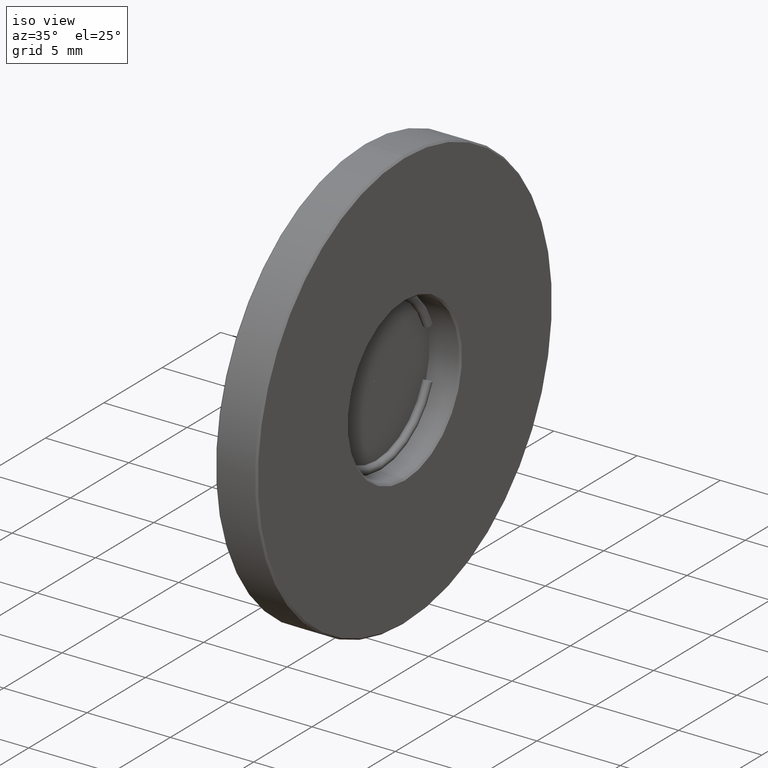
[diagram: clean part render]
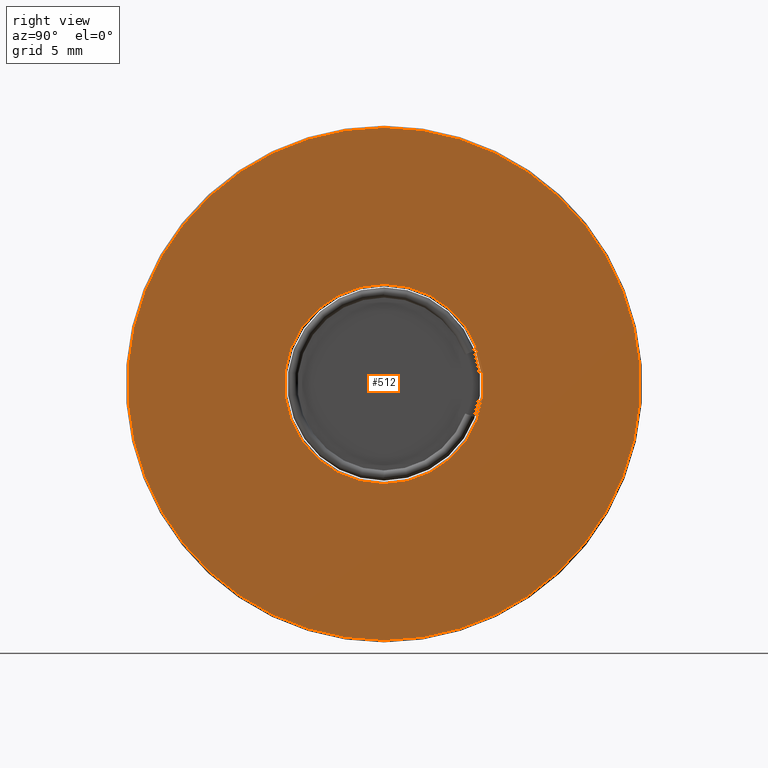
[diagram: tour spotlight — one face highlighted and labeled with its STEP entity id]
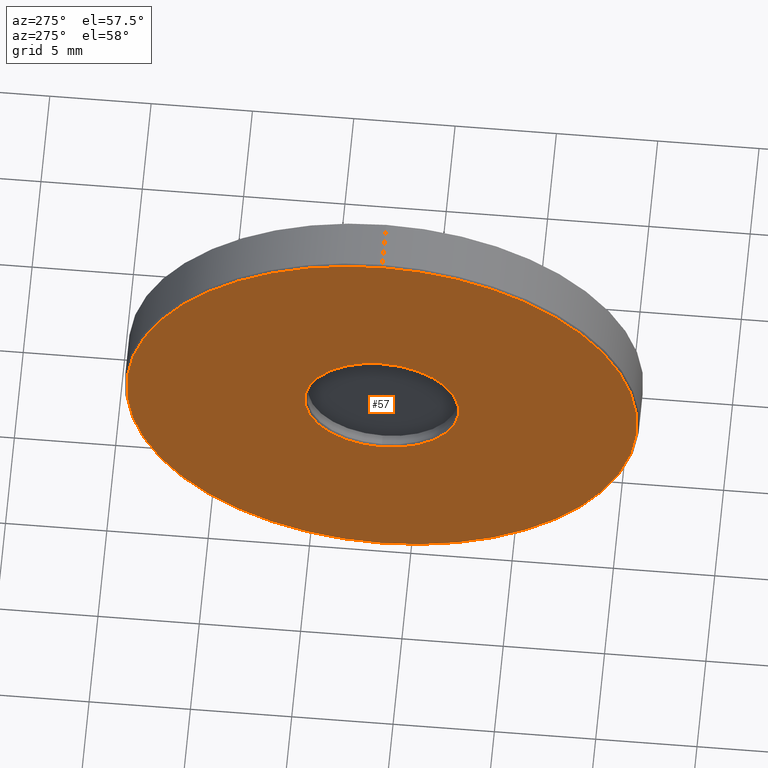
[diagram: tour spotlight — one face highlighted and labeled with its STEP entity id]
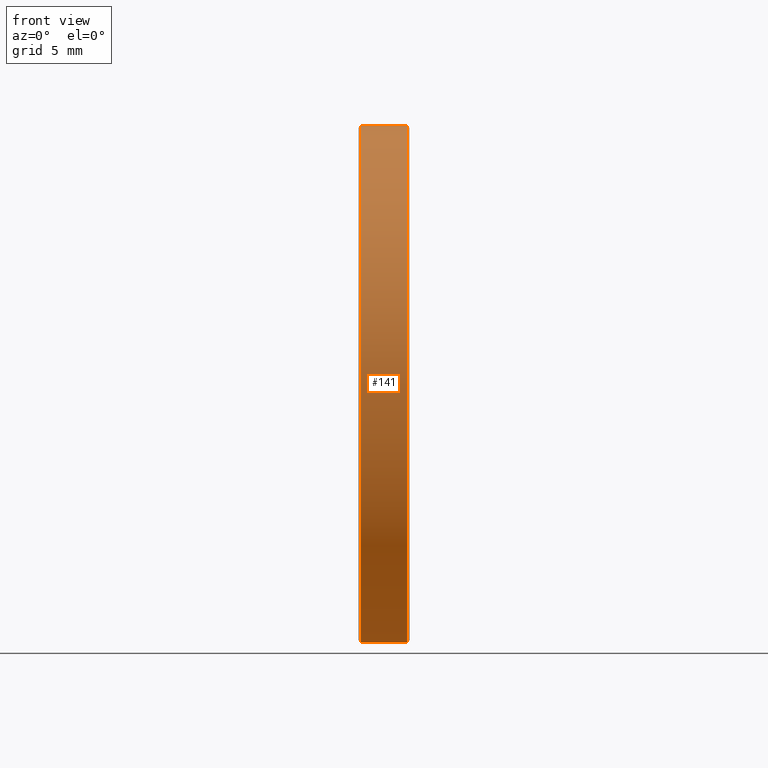
[diagram: tour spotlight — one face highlighted and labeled with its STEP entity id]
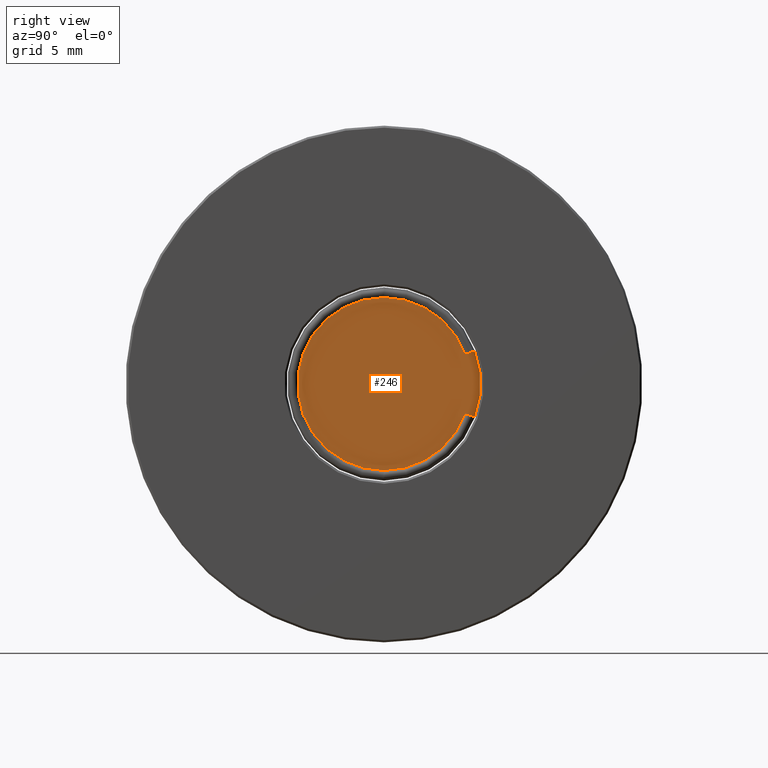
[diagram: tour spotlight — one face highlighted and labeled with its STEP entity id]
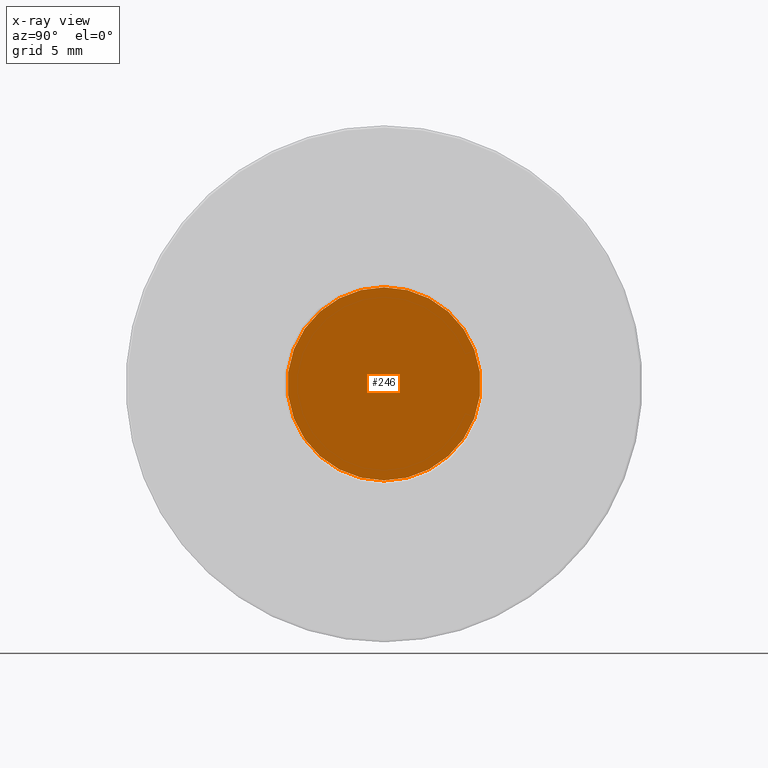
[diagram: x-ray of the same camera — body ghosted, this tour face saturated]
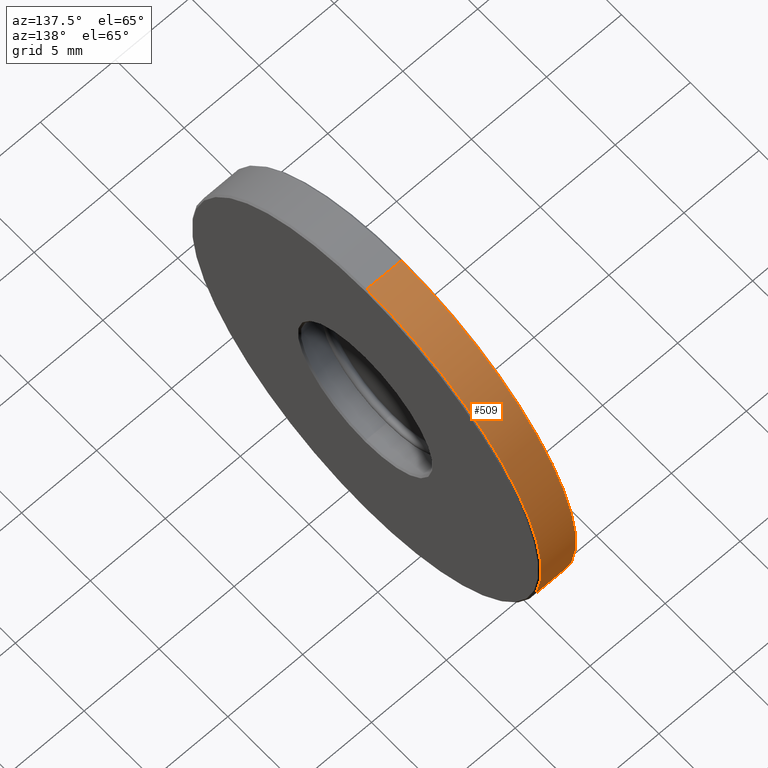
[diagram: tour spotlight — one face highlighted and labeled with its STEP entity id]
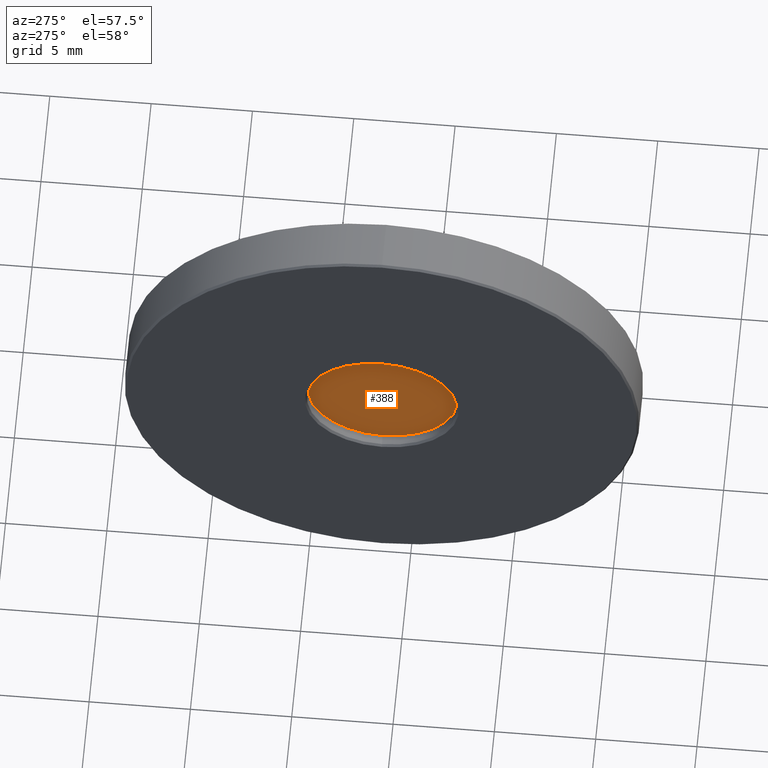
[diagram: tour spotlight — one face highlighted and labeled with its STEP entity id]
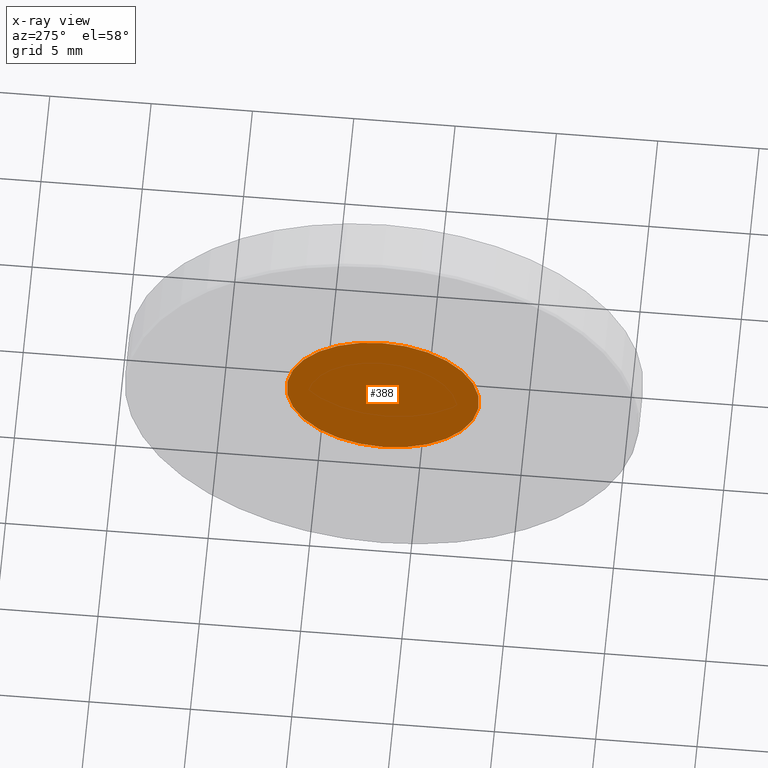
[diagram: x-ray of the same camera — body ghosted, this tour face saturated]
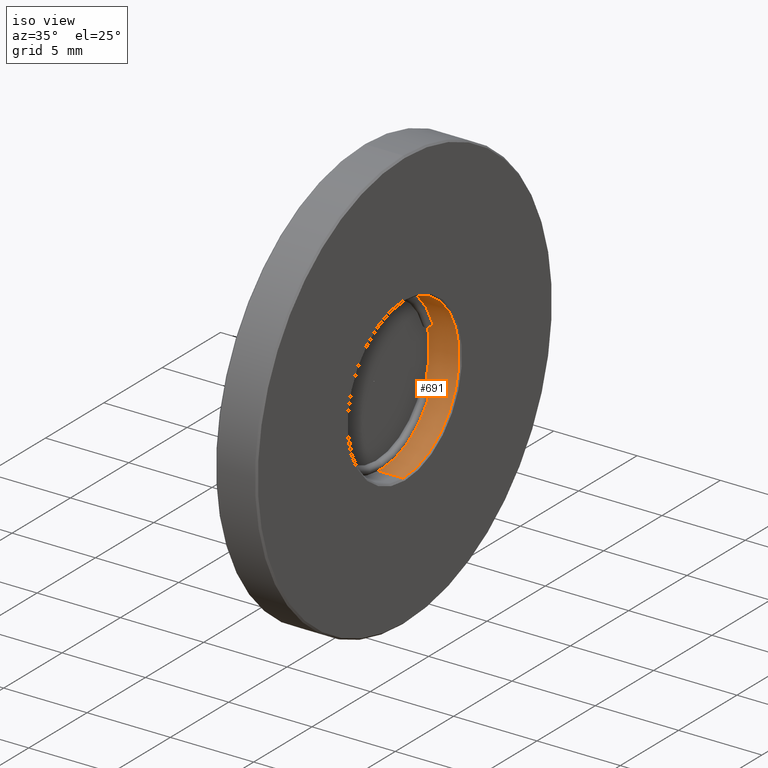
[diagram: tour spotlight — one face highlighted and labeled with its STEP entity id]
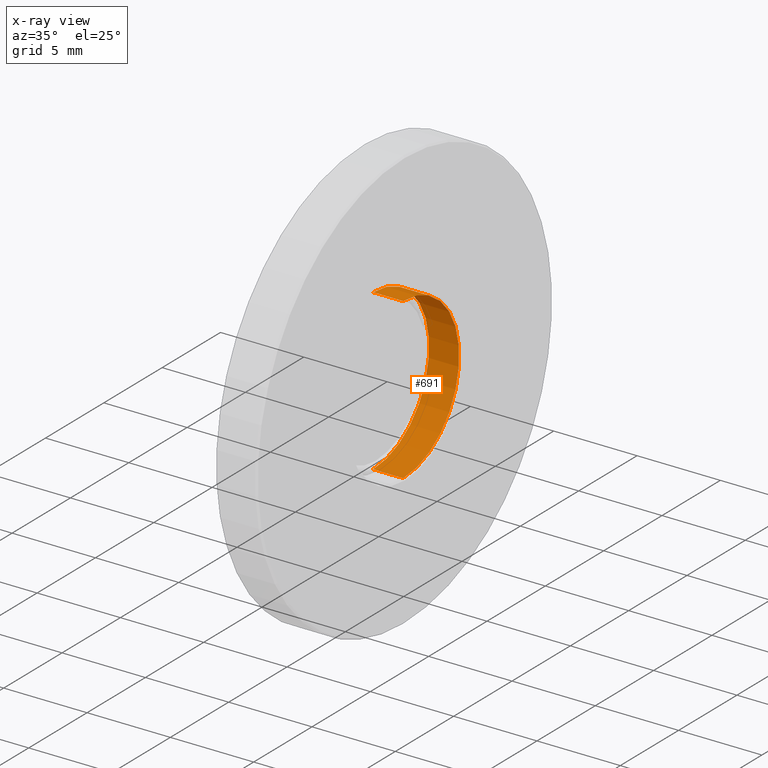
[diagram: x-ray of the same camera — body ghosted, this tour face saturated]
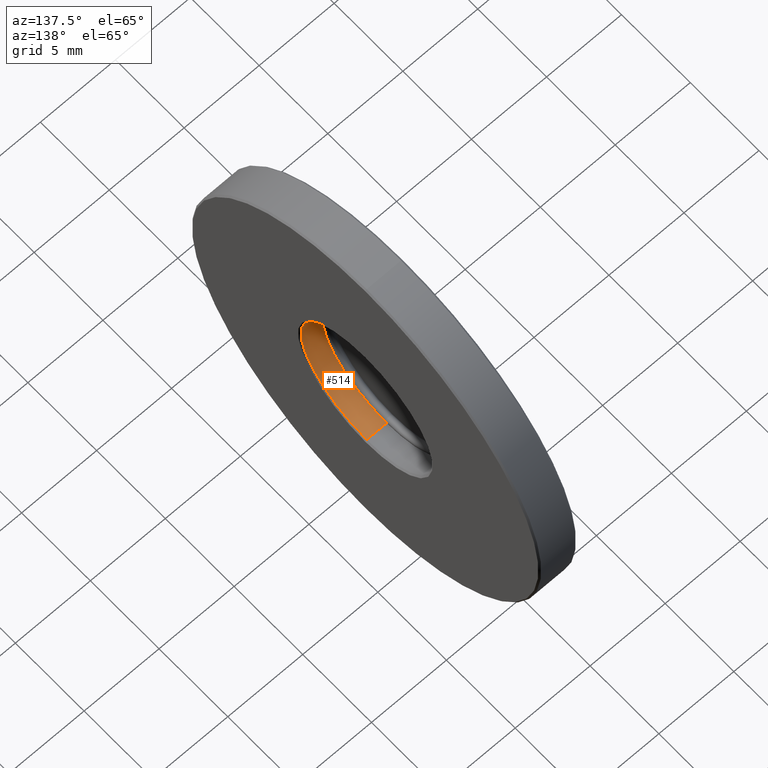
[diagram: tour spotlight — one face highlighted and labeled with its STEP entity id]
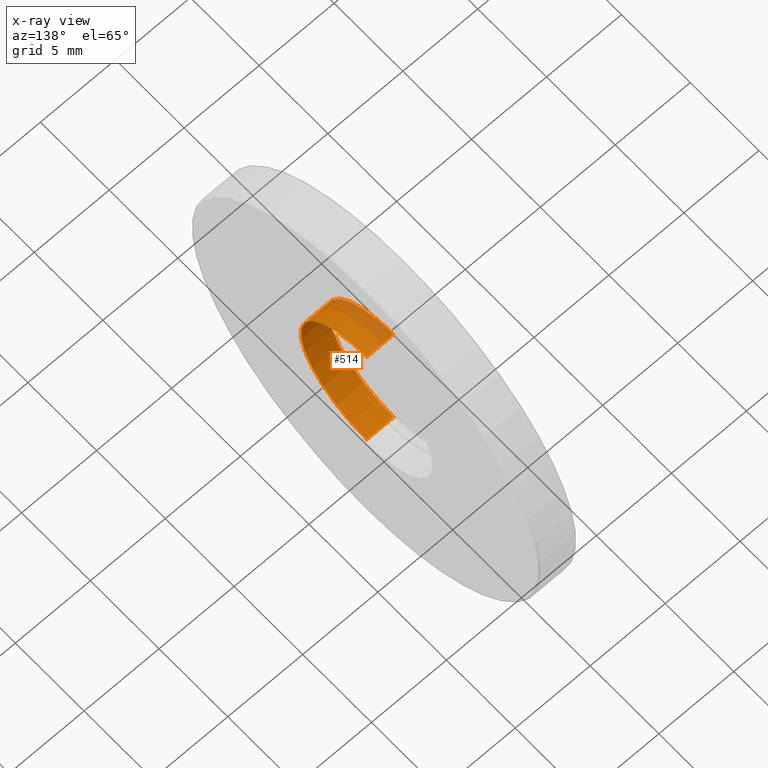
[diagram: x-ray of the same camera — body ghosted, this tour face saturated]
A machine part: a face-by-face anatomy tour. The part has 26 B-rep faces; the first image is the clean iso view, then the 8 largest visible faces are spotlighted one at a time (largest first), each with its STEP entity span.

Face 1 — right view, entity #512. In plain terms, the highlighted planar face has unit normal (1, 0, 0).
Definition (entity closure, byte-faithful):
#51 = DIRECTION ( 'NONE',  ( 1.000000000000000000, 0.0000000000000000000, 0.0000000000000000000 ) ) ;
#60 = DIRECTION ( 'NONE',  ( -1.000000000000000000, -0.0000000000000000000, -0.0000000000000000000 ) ) ;
#85 = CIRCLE ( 'NONE', #587, 4.899999999999997691 ) ;
#90 = CARTESIAN_POINT ( 'NONE',  ( -2.434863851253203482, 1.436758841085141736, 30.29999999999999716 ) ) ;
#121 = CARTESIAN_POINT ( 'NONE',  ( -2.434863851253203482, 1.436758841085142402, 12.79999999999999716 ) ) ;
#139 = VERTEX_POINT ( 'NONE', #90 ) ;
#268 = FACE_OUTER_BOUND ( 'NONE', #740, .T. ) ;
#269 = EDGE_CURVE ( 'NONE', #508, #715, #409, .T. ) ;
#290 = AXIS2_PLACEMENT_3D ( 'NONE', #796, #436, #497 ) ;
#297 = DIRECTION ( 'NONE',  ( 0.0000000000000000000, 0.0000000000000000000, -1.000000000000000000 ) ) ;
#308 = EDGE_CURVE ( 'NONE', #139, #402, #85, .T. ) ;
#329 = CARTESIAN_POINT ( 'NONE',  ( -2.434863851253203482, 1.436758841085141070, 20.50000000000000000 ) ) ;
#345 = ORIENTED_EDGE ( 'NONE', *, *, #423, .T. ) ;
#349 = EDGE_CURVE ( 'NONE', #402, #139, #758, .T. ) ;
#369 = AXIS2_PLACEMENT_3D ( 'NONE', #550, #738, #373 ) ;
#373 = DIRECTION ( 'NONE',  ( 0.0000000000000000000, 0.0000000000000000000, -1.000000000000000000 ) ) ;
#402 = VERTEX_POINT ( 'NONE', #329 ) ;
#408 = AXIS2_PLACEMENT_3D ( 'NONE', #733, #51, #602 ) ;
#409 = CIRCLE ( 'NONE', #547, 12.60000000000000142 ) ;
#423 = EDGE_CURVE ( 'NONE', #715, #508, #588, .T. ) ;
#425 = ORIENTED_EDGE ( 'NONE', *, *, #269, .T. ) ;
#436 = DIRECTION ( 'NONE',  ( -1.000000000000000000, -0.0000000000000000000, -0.0000000000000000000 ) ) ;
#445 = DIRECTION ( 'NONE',  ( 1.000000000000000000, 0.0000000000000000000, 0.0000000000000000000 ) ) ;
#455 = CARTESIAN_POINT ( 'NONE',  ( -2.434863851253203482, 1.436758841085141070, 38.00000000000000711 ) ) ;
#459 = ORIENTED_EDGE ( 'NONE', *, *, #308, .T. ) ;
#497 = DIRECTION ( 'NONE',  ( 0.0000000000000000000, 0.0000000000000000000, -1.000000000000000000 ) ) ;
#503 = CARTESIAN_POINT ( 'NONE',  ( -2.434863851253203482, 1.436758841085141070, 25.39999999999999858 ) ) ;
#508 = VERTEX_POINT ( 'NONE', #121 ) ;
#512 = ADVANCED_FACE ( 'NONE', ( #642, #268 ), #795, .T. ) ;
#547 = AXIS2_PLACEMENT_3D ( 'NONE', #802, #445, #716 ) ;
#550 = CARTESIAN_POINT ( 'NONE',  ( -2.434863851253203482, 1.436758841085141070, 25.39999999999999858 ) ) ;
#587 = AXIS2_PLACEMENT_3D ( 'NONE', #503, #60, #297 ) ;
#588 = CIRCLE ( 'NONE', #408, 12.60000000000000142 ) ;
#602 = DIRECTION ( 'NONE',  ( 0.0000000000000000000, 0.0000000000000000000, -1.000000000000000000 ) ) ;
#642 = FACE_BOUND ( 'NONE', #712, .T. ) ;
#712 = EDGE_LOOP ( 'NONE', ( #727, #459 ) ) ;
#715 = VERTEX_POINT ( 'NONE', #455 ) ;
#716 = DIRECTION ( 'NONE',  ( 0.0000000000000000000, 0.0000000000000000000, -1.000000000000000000 ) ) ;
#727 = ORIENTED_EDGE ( 'NONE', *, *, #349, .T. ) ;
#733 = CARTESIAN_POINT ( 'NONE',  ( -2.434863851253203482, 1.436758841085141070, 25.39999999999999858 ) ) ;
#738 = DIRECTION ( 'NONE',  ( 1.000000000000000000, 0.0000000000000000000, 0.0000000000000000000 ) ) ;
#740 = EDGE_LOOP ( 'NONE', ( #345, #425 ) ) ;
#758 = CIRCLE ( 'NONE', #290, 4.899999999999997691 ) ;
#795 = PLANE ( 'NONE',  #369 ) ;
#796 = CARTESIAN_POINT ( 'NONE',  ( -2.434863851253203482, 1.436758841085141070, 25.39999999999999858 ) ) ;
#802 = CARTESIAN_POINT ( 'NONE',  ( -2.434863851253203482, 1.436758841085141070, 25.39999999999999858 ) ) ;

Face 2 — auxiliary view, entity #57. In plain terms, the highlighted planar face has unit normal (1, 0, 0).
Definition (entity closure, byte-faithful):
#13 = AXIS2_PLACEMENT_3D ( 'NONE', #166, #42, #407 ) ;
#15 = VERTEX_POINT ( 'NONE', #732 ) ;
#42 = DIRECTION ( 'NONE',  ( 1.000000000000000000, 0.0000000000000000000, 0.0000000000000000000 ) ) ;
#57 = ADVANCED_FACE ( 'NONE', ( #521, #438 ), #125, .F. ) ;
#68 = DIRECTION ( 'NONE',  ( 0.0000000000000000000, 0.0000000000000000000, -1.000000000000000000 ) ) ;
#125 = PLANE ( 'NONE',  #597 ) ;
#127 = CARTESIAN_POINT ( 'NONE',  ( -4.934863851253203926, 1.436758841085141070, 25.39999999999999858 ) ) ;
#131 = CARTESIAN_POINT ( 'NONE',  ( -4.934863851253203926, 1.436758841085141070, 25.39999999999999858 ) ) ;
#166 = CARTESIAN_POINT ( 'NONE',  ( -4.934863851253203926, 1.436758841085141070, 25.39999999999999858 ) ) ;
#169 = AXIS2_PLACEMENT_3D ( 'NONE', #131, #620, #68 ) ;
#170 = ORIENTED_EDGE ( 'NONE', *, *, #714, .T. ) ;
#174 = VERTEX_POINT ( 'NONE', #397 ) ;
#179 = DIRECTION ( 'NONE',  ( 0.0000000000000000000, 0.0000000000000000000, -1.000000000000000000 ) ) ;
#184 = EDGE_CURVE ( 'NONE', #15, #174, #460, .T. ) ;
#261 = DIRECTION ( 'NONE',  ( 1.000000000000000000, 0.0000000000000000000, 0.0000000000000000000 ) ) ;
#267 = CARTESIAN_POINT ( 'NONE',  ( -4.934863851253203926, 1.436758841085141070, 25.39999999999999858 ) ) ;
#298 = EDGE_CURVE ( 'NONE', #174, #15, #604, .T. ) ;
#310 = CIRCLE ( 'NONE', #331, 12.59999999999999787 ) ;
#312 = CARTESIAN_POINT ( 'NONE',  ( -4.934863851253203926, 1.436758841085141070, 25.39999999999999858 ) ) ;
#331 = AXIS2_PLACEMENT_3D ( 'NONE', #127, #371, #179 ) ;
#334 = EDGE_LOOP ( 'NONE', ( #170, #601 ) ) ;
#342 = EDGE_LOOP ( 'NONE', ( #589, #665 ) ) ;
#371 = DIRECTION ( 'NONE',  ( -1.000000000000000000, -0.0000000000000000000, -0.0000000000000000000 ) ) ;
#391 = VERTEX_POINT ( 'NONE', #564 ) ;
#397 = CARTESIAN_POINT ( 'NONE',  ( -4.934863851253203926, 1.436758841085141070, 29.19999999999999929 ) ) ;
#399 = DIRECTION ( 'NONE',  ( 0.0000000000000000000, 0.0000000000000000000, -1.000000000000000000 ) ) ;
#406 = VERTEX_POINT ( 'NONE', #424 ) ;
#407 = DIRECTION ( 'NONE',  ( 0.0000000000000000000, 0.0000000000000000000, -1.000000000000000000 ) ) ;
#424 = CARTESIAN_POINT ( 'NONE',  ( -4.934863851253203926, 1.436758841085141070, 12.80000000000000071 ) ) ;
#438 = FACE_OUTER_BOUND ( 'NONE', #334, .T. ) ;
#454 = DIRECTION ( 'NONE',  ( 0.0000000000000000000, 0.0000000000000000000, -1.000000000000000000 ) ) ;
#460 = CIRCLE ( 'NONE', #13, 3.800000000000001155 ) ;
#463 = EDGE_CURVE ( 'NONE', #391, #406, #310, .T. ) ;
#495 = AXIS2_PLACEMENT_3D ( 'NONE', #267, #767, #399 ) ;
#521 = FACE_BOUND ( 'NONE', #342, .T. ) ;
#543 = CIRCLE ( 'NONE', #495, 12.59999999999999787 ) ;
#564 = CARTESIAN_POINT ( 'NONE',  ( -4.934863851253203926, 1.436758841085142402, 38.00000000000000000 ) ) ;
#589 = ORIENTED_EDGE ( 'NONE', *, *, #298, .T. ) ;
#597 = AXIS2_PLACEMENT_3D ( 'NONE', #312, #261, #454 ) ;
#601 = ORIENTED_EDGE ( 'NONE', *, *, #463, .T. ) ;
#604 = CIRCLE ( 'NONE', #169, 3.800000000000001155 ) ;
#620 = DIRECTION ( 'NONE',  ( 1.000000000000000000, 0.0000000000000000000, 0.0000000000000000000 ) ) ;
#665 = ORIENTED_EDGE ( 'NONE', *, *, #184, .T. ) ;
#714 = EDGE_CURVE ( 'NONE', #406, #391, #543, .T. ) ;
#732 = CARTESIAN_POINT ( 'NONE',  ( -4.934863851253203926, 1.436758841085141514, 21.59999999999999787 ) ) ;
#767 = DIRECTION ( 'NONE',  ( -1.000000000000000000, -0.0000000000000000000, -0.0000000000000000000 ) ) ;

Face 3 — front view, entity #141. In plain terms, the highlighted cylindrical surface (partial cylindrical patch) has radius 12.7 mm, axis along (-1, -0, -0).
Definition (entity closure, byte-faithful):
#12 = CARTESIAN_POINT ( 'NONE',  ( -4.834863851253204281, 1.436758841085141070, 25.39999999999999858 ) ) ;
#46 = AXIS2_PLACEMENT_3D ( 'NONE', #12, #447, #135 ) ;
#49 = EDGE_CURVE ( 'NONE', #511, #105, #194, .T. ) ;
#55 = VERTEX_POINT ( 'NONE', #667 ) ;
#88 = ORIENTED_EDGE ( 'NONE', *, *, #152, .T. ) ;
#105 = VERTEX_POINT ( 'NONE', #679 ) ;
#120 = VECTOR ( 'NONE', #655, 1000.000000000000000 ) ;
#135 = DIRECTION ( 'NONE',  ( 0.0000000000000000000, 0.0000000000000000000, -1.000000000000000000 ) ) ;
#141 = ADVANCED_FACE ( 'NONE', ( #396 ), #559, .T. ) ;
#152 = EDGE_CURVE ( 'NONE', #55, #511, #594, .T. ) ;
#158 = ORIENTED_EDGE ( 'NONE', *, *, #400, .T. ) ;
#161 = CARTESIAN_POINT ( 'NONE',  ( -4.834863851253204281, 1.436758841085141070, 12.69999999999999929 ) ) ;
#194 = LINE ( 'NONE', #558, #779 ) ;
#284 = LINE ( 'NONE', #507, #120 ) ;
#300 = CIRCLE ( 'NONE', #46, 12.69999999999999929 ) ;
#305 = EDGE_CURVE ( 'NONE', #55, #791, #284, .T. ) ;
#326 = ORIENTED_EDGE ( 'NONE', *, *, #49, .T. ) ;
#338 = DIRECTION ( 'NONE',  ( -1.000000000000000000, -0.0000000000000000000, -0.0000000000000000000 ) ) ;
#355 = DIRECTION ( 'NONE',  ( 0.0000000000000000000, 0.0000000000000000000, -1.000000000000000000 ) ) ;
#385 = AXIS2_PLACEMENT_3D ( 'NONE', #695, #338, #464 ) ;
#396 = FACE_OUTER_BOUND ( 'NONE', #478, .T. ) ;
#400 = EDGE_CURVE ( 'NONE', #105, #791, #300, .T. ) ;
#447 = DIRECTION ( 'NONE',  ( 1.000000000000000000, -0.0000000000000000000, -0.0000000000000000000 ) ) ;
#464 = DIRECTION ( 'NONE',  ( 0.0000000000000000000, 0.0000000000000000000, 1.000000000000000000 ) ) ;
#478 = EDGE_LOOP ( 'NONE', ( #633, #88, #326, #158 ) ) ;
#493 = DIRECTION ( 'NONE',  ( -1.000000000000000000, -0.0000000000000000000, -0.0000000000000000000 ) ) ;
#507 = CARTESIAN_POINT ( 'NONE',  ( -2.434863851253203482, 1.436758841085142402, 12.69999999999999929 ) ) ;
#511 = VERTEX_POINT ( 'NONE', #608 ) ;
#537 = AXIS2_PLACEMENT_3D ( 'NONE', #593, #774, #355 ) ;
#558 = CARTESIAN_POINT ( 'NONE',  ( -2.434863851253203482, 1.436758841085141070, 38.09999999999999432 ) ) ;
#559 = CYLINDRICAL_SURFACE ( 'NONE', #385, 12.69999999999999574 ) ;
#593 = CARTESIAN_POINT ( 'NONE',  ( -2.534863851253199574, 1.436758841085141070, 25.39999999999999858 ) ) ;
#594 = CIRCLE ( 'NONE', #537, 12.69999999999999929 ) ;
#608 = CARTESIAN_POINT ( 'NONE',  ( -2.534863851253199574, 1.436758841085141070, 38.09999999999999432 ) ) ;
#633 = ORIENTED_EDGE ( 'NONE', *, *, #305, .F. ) ;
#655 = DIRECTION ( 'NONE',  ( -1.000000000000000000, -0.0000000000000000000, -0.0000000000000000000 ) ) ;
#667 = CARTESIAN_POINT ( 'NONE',  ( -2.534863851253199574, 1.436758841085142402, 12.69999999999999929 ) ) ;
#679 = CARTESIAN_POINT ( 'NONE',  ( -4.834863851253204281, 1.436758841085142402, 38.09999999999999432 ) ) ;
#695 = CARTESIAN_POINT ( 'NONE',  ( -2.434863851253203482, 1.436758841085141070, 25.39999999999999858 ) ) ;
#774 = DIRECTION ( 'NONE',  ( -1.000000000000000000, 0.0000000000000000000, 0.0000000000000000000 ) ) ;
#779 = VECTOR ( 'NONE', #493, 1000.000000000000000 ) ;
#791 = VERTEX_POINT ( 'NONE', #161 ) ;

Face 4 — right view, entity #246. An x-ray twin of the same camera follows (body ghosted, this face saturated) — the face is partly hidden behind the body. In plain terms, the highlighted planar face has unit normal (1, 0, -0).
Definition (entity closure, byte-faithful):
#11 = FACE_BOUND ( 'NONE', #36, .T. ) ;
#36 = EDGE_LOOP ( 'NONE', ( #541, #773 ) ) ;
#43 = VERTEX_POINT ( 'NONE', #544 ) ;
#53 = CARTESIAN_POINT ( 'NONE',  ( -4.284863851253205347, 1.436758841085140181, 25.39999999999999858 ) ) ;
#84 = CIRCLE ( 'NONE', #347, 0.01500000000000112355 ) ;
#91 = CIRCLE ( 'NONE', #241, 4.750000000000000888 ) ;
#100 = DIRECTION ( 'NONE',  ( 0.0000000000000000000, 0.0000000000000000000, 1.000000000000000000 ) ) ;
#110 = DIRECTION ( 'NONE',  ( 1.000000000000000000, 0.0000000000000000000, 0.0000000000000000000 ) ) ;
#118 = DIRECTION ( 'NONE',  ( 1.000000000000000000, 0.0000000000000000000, 0.0000000000000000000 ) ) ;
#160 = PLANE ( 'NONE',  #615 ) ;
#183 = CARTESIAN_POINT ( 'NONE',  ( -4.284863851253205347, 1.436758841085140181, 25.39999999999999858 ) ) ;
#217 = VERTEX_POINT ( 'NONE', #705 ) ;
#218 = CARTESIAN_POINT ( 'NONE',  ( -4.284863851253205347, 1.436758841085140181, 25.39999999999999858 ) ) ;
#241 = AXIS2_PLACEMENT_3D ( 'NONE', #183, #110, #321 ) ;
#246 = ADVANCED_FACE ( 'NONE', ( #656, #11 ), #160, .T. ) ;
#253 = EDGE_CURVE ( 'NONE', #43, #361, #472, .T. ) ;
#263 = CARTESIAN_POINT ( 'NONE',  ( -4.284863851253205347, 1.436758841085140181, 30.14999999999999858 ) ) ;
#313 = EDGE_LOOP ( 'NONE', ( #393, #539 ) ) ;
#315 = CARTESIAN_POINT ( 'NONE',  ( -4.284863851253205347, 1.436758841085140181, 25.39999999999999858 ) ) ;
#318 = AXIS2_PLACEMENT_3D ( 'NONE', #491, #118, #494 ) ;
#321 = DIRECTION ( 'NONE',  ( 0.0000000000000000000, 0.0000000000000000000, 1.000000000000000000 ) ) ;
#336 = EDGE_CURVE ( 'NONE', #417, #217, #91, .T. ) ;
#347 = AXIS2_PLACEMENT_3D ( 'NONE', #53, #430, #542 ) ;
#361 = VERTEX_POINT ( 'NONE', #730 ) ;
#393 = ORIENTED_EDGE ( 'NONE', *, *, #336, .T. ) ;
#410 = CIRCLE ( 'NONE', #318, 4.750000000000000888 ) ;
#411 = EDGE_CURVE ( 'NONE', #361, #43, #84, .T. ) ;
#417 = VERTEX_POINT ( 'NONE', #263 ) ;
#430 = DIRECTION ( 'NONE',  ( 1.000000000000000000, 0.0000000000000000000, 0.0000000000000000000 ) ) ;
#439 = DIRECTION ( 'NONE',  ( 0.0000000000000000000, 0.0000000000000000000, 1.000000000000000000 ) ) ;
#446 = EDGE_CURVE ( 'NONE', #217, #417, #410, .T. ) ;
#472 = CIRCLE ( 'NONE', #475, 0.01500000000000112355 ) ;
#475 = AXIS2_PLACEMENT_3D ( 'NONE', #315, #561, #439 ) ;
#491 = CARTESIAN_POINT ( 'NONE',  ( -4.284863851253205347, 1.436758841085140181, 25.39999999999999858 ) ) ;
#494 = DIRECTION ( 'NONE',  ( 0.0000000000000000000, 0.0000000000000000000, 1.000000000000000000 ) ) ;
#539 = ORIENTED_EDGE ( 'NONE', *, *, #446, .T. ) ;
#541 = ORIENTED_EDGE ( 'NONE', *, *, #411, .F. ) ;
#542 = DIRECTION ( 'NONE',  ( 0.0000000000000000000, 0.0000000000000000000, 1.000000000000000000 ) ) ;
#544 = CARTESIAN_POINT ( 'NONE',  ( -4.284863851253205347, 1.436758841085140181, 25.38499999999999801 ) ) ;
#561 = DIRECTION ( 'NONE',  ( 1.000000000000000000, 0.0000000000000000000, 0.0000000000000000000 ) ) ;
#615 = AXIS2_PLACEMENT_3D ( 'NONE', #218, #643, #100 ) ;
#643 = DIRECTION ( 'NONE',  ( 1.000000000000000000, 0.0000000000000000000, -0.0000000000000000000 ) ) ;
#656 = FACE_OUTER_BOUND ( 'NONE', #313, .T. ) ;
#705 = CARTESIAN_POINT ( 'NONE',  ( -4.284863851253205347, 1.436758841085139515, 20.64999999999999858 ) ) ;
#730 = CARTESIAN_POINT ( 'NONE',  ( -4.284863851253205347, 1.436758841085140181, 25.41499999999999915 ) ) ;
#773 = ORIENTED_EDGE ( 'NONE', *, *, #253, .F. ) ;

Face 5 — auxiliary view, entity #509. In plain terms, the highlighted cylindrical surface (partial cylindrical patch) has radius 12.7 mm, axis along (-1, -0, -0).
Definition (entity closure, byte-faithful):
#49 = EDGE_CURVE ( 'NONE', #511, #105, #194, .T. ) ;
#55 = VERTEX_POINT ( 'NONE', #667 ) ;
#105 = VERTEX_POINT ( 'NONE', #679 ) ;
#120 = VECTOR ( 'NONE', #655, 1000.000000000000000 ) ;
#157 = ORIENTED_EDGE ( 'NONE', *, *, #515, .T. ) ;
#161 = CARTESIAN_POINT ( 'NONE',  ( -4.834863851253204281, 1.436758841085141070, 12.69999999999999929 ) ) ;
#163 = CIRCLE ( 'NONE', #238, 12.69999999999999929 ) ;
#176 = ORIENTED_EDGE ( 'NONE', *, *, #322, .T. ) ;
#187 = AXIS2_PLACEMENT_3D ( 'NONE', #307, #668, #800 ) ;
#191 = CARTESIAN_POINT ( 'NONE',  ( -2.534863851253199574, 1.436758841085141070, 25.39999999999999858 ) ) ;
#194 = LINE ( 'NONE', #558, #779 ) ;
#204 = ORIENTED_EDGE ( 'NONE', *, *, #305, .T. ) ;
#238 = AXIS2_PLACEMENT_3D ( 'NONE', #323, #555, #563 ) ;
#249 = DIRECTION ( 'NONE',  ( -1.000000000000000000, 0.0000000000000000000, 0.0000000000000000000 ) ) ;
#284 = LINE ( 'NONE', #507, #120 ) ;
#305 = EDGE_CURVE ( 'NONE', #55, #791, #284, .T. ) ;
#307 = CARTESIAN_POINT ( 'NONE',  ( -2.434863851253203482, 1.436758841085141070, 25.39999999999999858 ) ) ;
#311 = DIRECTION ( 'NONE',  ( 0.0000000000000000000, 0.0000000000000000000, -1.000000000000000000 ) ) ;
#322 = EDGE_CURVE ( 'NONE', #511, #55, #719, .T. ) ;
#323 = CARTESIAN_POINT ( 'NONE',  ( -4.834863851253204281, 1.436758841085141070, 25.39999999999999858 ) ) ;
#368 = ORIENTED_EDGE ( 'NONE', *, *, #49, .F. ) ;
#493 = DIRECTION ( 'NONE',  ( -1.000000000000000000, -0.0000000000000000000, -0.0000000000000000000 ) ) ;
#507 = CARTESIAN_POINT ( 'NONE',  ( -2.434863851253203482, 1.436758841085142402, 12.69999999999999929 ) ) ;
#509 = ADVANCED_FACE ( 'NONE', ( #710 ), #750, .T. ) ;
#511 = VERTEX_POINT ( 'NONE', #608 ) ;
#515 = EDGE_CURVE ( 'NONE', #791, #105, #163, .T. ) ;
#555 = DIRECTION ( 'NONE',  ( 1.000000000000000000, -0.0000000000000000000, -0.0000000000000000000 ) ) ;
#558 = CARTESIAN_POINT ( 'NONE',  ( -2.434863851253203482, 1.436758841085141070, 38.09999999999999432 ) ) ;
#563 = DIRECTION ( 'NONE',  ( 0.0000000000000000000, 0.0000000000000000000, -1.000000000000000000 ) ) ;
#608 = CARTESIAN_POINT ( 'NONE',  ( -2.534863851253199574, 1.436758841085141070, 38.09999999999999432 ) ) ;
#655 = DIRECTION ( 'NONE',  ( -1.000000000000000000, -0.0000000000000000000, -0.0000000000000000000 ) ) ;
#659 = EDGE_LOOP ( 'NONE', ( #176, #204, #157, #368 ) ) ;
#667 = CARTESIAN_POINT ( 'NONE',  ( -2.534863851253199574, 1.436758841085142402, 12.69999999999999929 ) ) ;
#668 = DIRECTION ( 'NONE',  ( -1.000000000000000000, -0.0000000000000000000, -0.0000000000000000000 ) ) ;
#679 = CARTESIAN_POINT ( 'NONE',  ( -4.834863851253204281, 1.436758841085142402, 38.09999999999999432 ) ) ;
#707 = AXIS2_PLACEMENT_3D ( 'NONE', #191, #249, #311 ) ;
#710 = FACE_OUTER_BOUND ( 'NONE', #659, .T. ) ;
#719 = CIRCLE ( 'NONE', #707, 12.69999999999999929 ) ;
#750 = CYLINDRICAL_SURFACE ( 'NONE', #187, 12.69999999999999574 ) ;
#779 = VECTOR ( 'NONE', #493, 1000.000000000000000 ) ;
#791 = VERTEX_POINT ( 'NONE', #161 ) ;
#800 = DIRECTION ( 'NONE',  ( 0.0000000000000000000, 0.0000000000000000000, 1.000000000000000000 ) ) ;

Face 6 — auxiliary view, entity #388. An x-ray twin of the same camera follows (body ghosted, this face saturated) — the face is partly hidden behind the body. In plain terms, the highlighted planar face has unit normal (1, 0, -0).
Definition (entity closure, byte-faithful):
#17 = DIRECTION ( 'NONE',  ( 0.0000000000000000000, 0.0000000000000000000, 1.000000000000000000 ) ) ;
#22 = VERTEX_POINT ( 'NONE', #793 ) ;
#47 = VERTEX_POINT ( 'NONE', #490 ) ;
#50 = AXIS2_PLACEMENT_3D ( 'NONE', #570, #449, #252 ) ;
#62 = ORIENTED_EDGE ( 'NONE', *, *, #742, .F. ) ;
#73 = DIRECTION ( 'NONE',  ( 0.0000000000000000000, 0.0000000000000000000, 1.000000000000000000 ) ) ;
#148 = EDGE_LOOP ( 'NONE', ( #339, #440 ) ) ;
#178 = CIRCLE ( 'NONE', #287, 0.01500000000000112355 ) ;
#207 = VERTEX_POINT ( 'NONE', #711 ) ;
#221 = DIRECTION ( 'NONE',  ( 1.000000000000000000, 0.0000000000000000000, 0.0000000000000000000 ) ) ;
#223 = AXIS2_PLACEMENT_3D ( 'NONE', #660, #237, #662 ) ;
#237 = DIRECTION ( 'NONE',  ( 1.000000000000000000, 0.0000000000000000000, 0.0000000000000000000 ) ) ;
#252 = DIRECTION ( 'NONE',  ( 0.0000000000000000000, 0.0000000000000000000, 1.000000000000000000 ) ) ;
#287 = AXIS2_PLACEMENT_3D ( 'NONE', #682, #749, #17 ) ;
#330 = CIRCLE ( 'NONE', #652, 4.750000000000000888 ) ;
#339 = ORIENTED_EDGE ( 'NONE', *, *, #505, .T. ) ;
#354 = EDGE_CURVE ( 'NONE', #47, #207, #330, .T. ) ;
#356 = AXIS2_PLACEMENT_3D ( 'NONE', #528, #221, #669 ) ;
#388 = ADVANCED_FACE ( 'NONE', ( #789, #394 ), #451, .F. ) ;
#394 = FACE_BOUND ( 'NONE', #148, .T. ) ;
#440 = ORIENTED_EDGE ( 'NONE', *, *, #611, .T. ) ;
#448 = CIRCLE ( 'NONE', #223, 0.01500000000000112355 ) ;
#449 = DIRECTION ( 'NONE',  ( 1.000000000000000000, 0.0000000000000000000, -0.0000000000000000000 ) ) ;
#451 = PLANE ( 'NONE',  #50 ) ;
#490 = CARTESIAN_POINT ( 'NONE',  ( -4.334863851253204281, 1.436758841085139515, 20.64999999999999858 ) ) ;
#505 = EDGE_CURVE ( 'NONE', #22, #568, #448, .T. ) ;
#528 = CARTESIAN_POINT ( 'NONE',  ( -4.334863851253204281, 1.436758841085140181, 25.39999999999999858 ) ) ;
#546 = ORIENTED_EDGE ( 'NONE', *, *, #354, .F. ) ;
#568 = VERTEX_POINT ( 'NONE', #728 ) ;
#570 = CARTESIAN_POINT ( 'NONE',  ( -4.334863851253204281, 1.436758841085140181, 25.39999999999999858 ) ) ;
#611 = EDGE_CURVE ( 'NONE', #568, #22, #178, .T. ) ;
#622 = CARTESIAN_POINT ( 'NONE',  ( -4.334863851253204281, 1.436758841085140181, 25.39999999999999858 ) ) ;
#652 = AXIS2_PLACEMENT_3D ( 'NONE', #622, #748, #73 ) ;
#660 = CARTESIAN_POINT ( 'NONE',  ( -4.334863851253204281, 1.436758841085140181, 25.39999999999999858 ) ) ;
#662 = DIRECTION ( 'NONE',  ( 0.0000000000000000000, 0.0000000000000000000, 1.000000000000000000 ) ) ;
#669 = DIRECTION ( 'NONE',  ( 0.0000000000000000000, 0.0000000000000000000, 1.000000000000000000 ) ) ;
#682 = CARTESIAN_POINT ( 'NONE',  ( -4.334863851253204281, 1.436758841085140181, 25.39999999999999858 ) ) ;
#693 = EDGE_LOOP ( 'NONE', ( #62, #546 ) ) ;
#701 = CIRCLE ( 'NONE', #356, 4.750000000000000888 ) ;
#711 = CARTESIAN_POINT ( 'NONE',  ( -4.334863851253204281, 1.436758841085140181, 30.14999999999999858 ) ) ;
#728 = CARTESIAN_POINT ( 'NONE',  ( -4.334863851253204281, 1.436758841085140181, 25.38499999999999801 ) ) ;
#742 = EDGE_CURVE ( 'NONE', #207, #47, #701, .T. ) ;
#748 = DIRECTION ( 'NONE',  ( 1.000000000000000000, 0.0000000000000000000, 0.0000000000000000000 ) ) ;
#749 = DIRECTION ( 'NONE',  ( 1.000000000000000000, 0.0000000000000000000, 0.0000000000000000000 ) ) ;
#789 = FACE_OUTER_BOUND ( 'NONE', #693, .T. ) ;
#793 = CARTESIAN_POINT ( 'NONE',  ( -4.334863851253204281, 1.436758841085140181, 25.41499999999999915 ) ) ;

Face 7 — iso view, entity #691. An x-ray twin of the same camera follows (body ghosted, this face saturated) — the face is partly hidden behind the body. In plain terms, the highlighted cylindrical surface (partial cylindrical patch) has radius 4.8 mm, axis along (1, 0, 0).
Definition (entity closure, byte-faithful):
#14 = VERTEX_POINT ( 'NONE', #58 ) ;
#29 = EDGE_CURVE ( 'NONE', #196, #14, #540, .T. ) ;
#58 = CARTESIAN_POINT ( 'NONE',  ( -4.334863851253203393, 1.436758841085141736, 30.19999999999999929 ) ) ;
#63 = LINE ( 'NONE', #188, #156 ) ;
#67 = CARTESIAN_POINT ( 'NONE',  ( -2.534863851253202682, 1.436758841085141736, 30.19999999999999929 ) ) ;
#79 = ORIENTED_EDGE ( 'NONE', *, *, #302, .T. ) ;
#119 = AXIS2_PLACEMENT_3D ( 'NONE', #324, #199, #381 ) ;
#156 = VECTOR ( 'NONE', #741, 1000.000000000000000 ) ;
#188 = CARTESIAN_POINT ( 'NONE',  ( -18.51131405003491537, 1.436758841085141070, 20.60000000000000142 ) ) ;
#196 = VERTEX_POINT ( 'NONE', #525 ) ;
#199 = DIRECTION ( 'NONE',  ( 1.000000000000000000, -0.0000000000000000000, -0.0000000000000000000 ) ) ;
#236 = DIRECTION ( 'NONE',  ( 1.000000000000000000, 0.0000000000000000000, 0.0000000000000000000 ) ) ;
#242 = CYLINDRICAL_SURFACE ( 'NONE', #724, 4.799999999999998934 ) ;
#254 = LINE ( 'NONE', #435, #476 ) ;
#302 = EDGE_CURVE ( 'NONE', #196, #697, #63, .T. ) ;
#320 = ORIENTED_EDGE ( 'NONE', *, *, #29, .F. ) ;
#324 = CARTESIAN_POINT ( 'NONE',  ( -2.534863851253202682, 1.436758841085141070, 25.39999999999999858 ) ) ;
#340 = CARTESIAN_POINT ( 'NONE',  ( -18.51131405003491537, 1.436758841085141070, 25.39999999999999858 ) ) ;
#346 = AXIS2_PLACEMENT_3D ( 'NONE', #603, #236, #367 ) ;
#367 = DIRECTION ( 'NONE',  ( 0.0000000000000000000, 0.0000000000000000000, -1.000000000000000000 ) ) ;
#381 = DIRECTION ( 'NONE',  ( 0.0000000000000000000, 0.0000000000000000000, -1.000000000000000000 ) ) ;
#389 = EDGE_CURVE ( 'NONE', #697, #578, #687, .T. ) ;
#427 = EDGE_CURVE ( 'NONE', #14, #578, #254, .T. ) ;
#435 = CARTESIAN_POINT ( 'NONE',  ( -18.51131405003491537, 1.436758841085141736, 30.19999999999999929 ) ) ;
#476 = VECTOR ( 'NONE', #600, 1000.000000000000000 ) ;
#525 = CARTESIAN_POINT ( 'NONE',  ( -4.334863851253203393, 1.436758841085141070, 20.60000000000000142 ) ) ;
#540 = CIRCLE ( 'NONE', #346, 4.799999999999998934 ) ;
#565 = FACE_OUTER_BOUND ( 'NONE', #567, .T. ) ;
#567 = EDGE_LOOP ( 'NONE', ( #689, #320, #79, #657 ) ) ;
#578 = VERTEX_POINT ( 'NONE', #67 ) ;
#600 = DIRECTION ( 'NONE',  ( 1.000000000000000000, 0.0000000000000000000, 0.0000000000000000000 ) ) ;
#603 = CARTESIAN_POINT ( 'NONE',  ( -4.334863851253203393, 1.436758841085141070, 25.39999999999999858 ) ) ;
#657 = ORIENTED_EDGE ( 'NONE', *, *, #389, .T. ) ;
#687 = CIRCLE ( 'NONE', #119, 4.799999999999998934 ) ;
#689 = ORIENTED_EDGE ( 'NONE', *, *, #427, .F. ) ;
#691 = ADVANCED_FACE ( 'NONE', ( #565 ), #242, .F. ) ;
#692 = DIRECTION ( 'NONE',  ( 1.000000000000000000, 0.0000000000000000000, 0.0000000000000000000 ) ) ;
#697 = VERTEX_POINT ( 'NONE', #757 ) ;
#699 = DIRECTION ( 'NONE',  ( 0.0000000000000000000, 0.0000000000000000000, -1.000000000000000000 ) ) ;
#724 = AXIS2_PLACEMENT_3D ( 'NONE', #340, #692, #699 ) ;
#741 = DIRECTION ( 'NONE',  ( 1.000000000000000000, 0.0000000000000000000, 0.0000000000000000000 ) ) ;
#757 = CARTESIAN_POINT ( 'NONE',  ( -2.534863851253202682, 1.436758841085141070, 20.60000000000000142 ) ) ;

Face 8 — auxiliary view, entity #514. An x-ray twin of the same camera follows (body ghosted, this face saturated) — the face is partly hidden behind the body. In plain terms, the highlighted cylindrical surface (partial cylindrical patch) has radius 4.8 mm, axis along (1, 0, 0).
Definition (entity closure, byte-faithful):
#14 = VERTEX_POINT ( 'NONE', #58 ) ;
#39 = AXIS2_PLACEMENT_3D ( 'NONE', #292, #350, #777 ) ;
#58 = CARTESIAN_POINT ( 'NONE',  ( -4.334863851253203393, 1.436758841085141736, 30.19999999999999929 ) ) ;
#63 = LINE ( 'NONE', #188, #156 ) ;
#67 = CARTESIAN_POINT ( 'NONE',  ( -2.534863851253202682, 1.436758841085141736, 30.19999999999999929 ) ) ;
#77 = AXIS2_PLACEMENT_3D ( 'NONE', #116, #366, #316 ) ;
#92 = AXIS2_PLACEMENT_3D ( 'NONE', #372, #229, #123 ) ;
#116 = CARTESIAN_POINT ( 'NONE',  ( -18.51131405003491537, 1.436758841085141070, 25.39999999999999858 ) ) ;
#123 = DIRECTION ( 'NONE',  ( 0.0000000000000000000, 0.0000000000000000000, -1.000000000000000000 ) ) ;
#156 = VECTOR ( 'NONE', #741, 1000.000000000000000 ) ;
#188 = CARTESIAN_POINT ( 'NONE',  ( -18.51131405003491537, 1.436758841085141070, 20.60000000000000142 ) ) ;
#196 = VERTEX_POINT ( 'NONE', #525 ) ;
#215 = FACE_OUTER_BOUND ( 'NONE', #759, .T. ) ;
#228 = EDGE_CURVE ( 'NONE', #14, #196, #771, .T. ) ;
#229 = DIRECTION ( 'NONE',  ( 1.000000000000000000, -0.0000000000000000000, -0.0000000000000000000 ) ) ;
#254 = LINE ( 'NONE', #435, #476 ) ;
#258 = EDGE_CURVE ( 'NONE', #578, #697, #453, .T. ) ;
#292 = CARTESIAN_POINT ( 'NONE',  ( -4.334863851253203393, 1.436758841085141070, 25.39999999999999858 ) ) ;
#302 = EDGE_CURVE ( 'NONE', #196, #697, #63, .T. ) ;
#316 = DIRECTION ( 'NONE',  ( 0.0000000000000000000, 0.0000000000000000000, -1.000000000000000000 ) ) ;
#350 = DIRECTION ( 'NONE',  ( 1.000000000000000000, 0.0000000000000000000, 0.0000000000000000000 ) ) ;
#366 = DIRECTION ( 'NONE',  ( 1.000000000000000000, 0.0000000000000000000, 0.0000000000000000000 ) ) ;
#372 = CARTESIAN_POINT ( 'NONE',  ( -2.534863851253202682, 1.436758841085141070, 25.39999999999999858 ) ) ;
#426 = ORIENTED_EDGE ( 'NONE', *, *, #258, .T. ) ;
#427 = EDGE_CURVE ( 'NONE', #14, #578, #254, .T. ) ;
#435 = CARTESIAN_POINT ( 'NONE',  ( -18.51131405003491537, 1.436758841085141736, 30.19999999999999929 ) ) ;
#453 = CIRCLE ( 'NONE', #92, 4.799999999999998934 ) ;
#476 = VECTOR ( 'NONE', #600, 1000.000000000000000 ) ;
#514 = ADVANCED_FACE ( 'NONE', ( #215 ), #573, .F. ) ;
#525 = CARTESIAN_POINT ( 'NONE',  ( -4.334863851253203393, 1.436758841085141070, 20.60000000000000142 ) ) ;
#573 = CYLINDRICAL_SURFACE ( 'NONE', #77, 4.799999999999998934 ) ;
#578 = VERTEX_POINT ( 'NONE', #67 ) ;
#582 = ORIENTED_EDGE ( 'NONE', *, *, #302, .F. ) ;
#600 = DIRECTION ( 'NONE',  ( 1.000000000000000000, 0.0000000000000000000, 0.0000000000000000000 ) ) ;
#663 = ORIENTED_EDGE ( 'NONE', *, *, #427, .T. ) ;
#697 = VERTEX_POINT ( 'NONE', #757 ) ;
#704 = ORIENTED_EDGE ( 'NONE', *, *, #228, .F. ) ;
#741 = DIRECTION ( 'NONE',  ( 1.000000000000000000, 0.0000000000000000000, 0.0000000000000000000 ) ) ;
#757 = CARTESIAN_POINT ( 'NONE',  ( -2.534863851253202682, 1.436758841085141070, 20.60000000000000142 ) ) ;
#759 = EDGE_LOOP ( 'NONE', ( #704, #663, #426, #582 ) ) ;
#771 = CIRCLE ( 'NONE', #39, 4.799999999999998934 ) ;
#777 = DIRECTION ( 'NONE',  ( 0.0000000000000000000, 0.0000000000000000000, -1.000000000000000000 ) ) ;